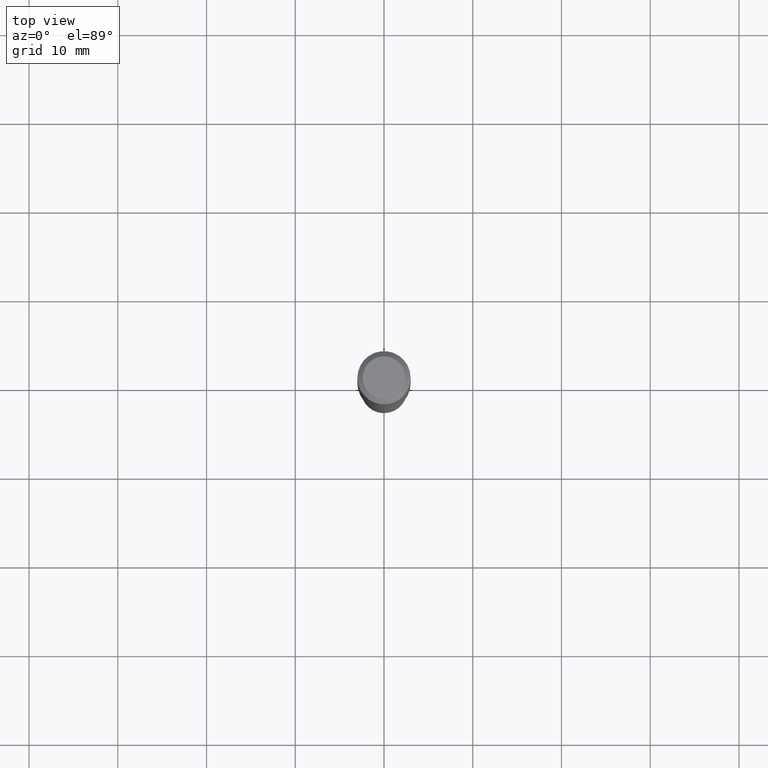
[diagram: clean part render]
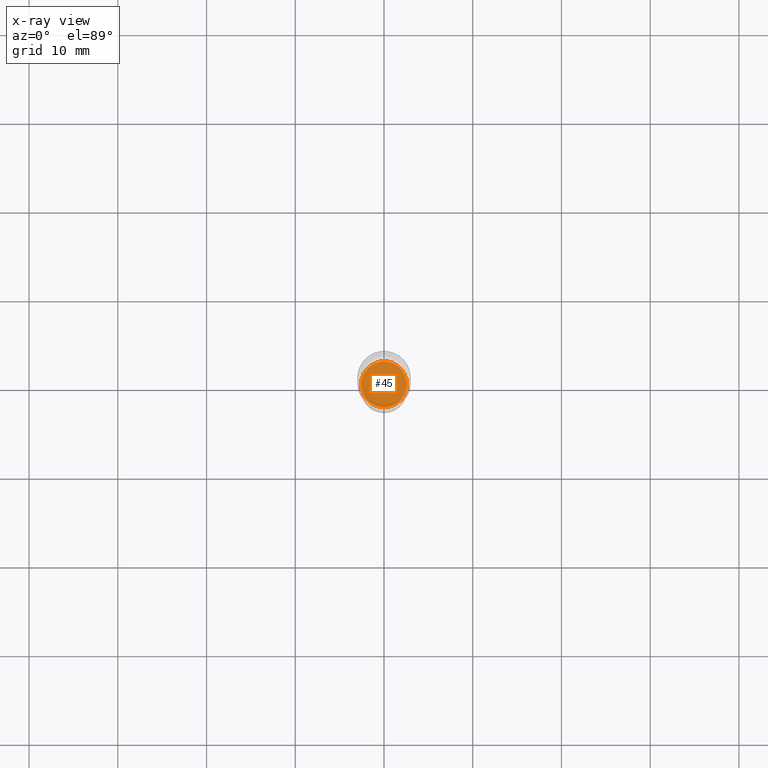
[diagram: x-ray — body ghosted, one internal face saturated and labeled with its STEP entity id]
A machine part, top view, then the same camera in x-ray: the body is ghosted and one INTERNAL B-rep face — a face not visible from any outside direction — is saturated and labeled: STEP entity #45.
In plain terms, the highlighted planar face has unit normal (-0, 0, 1).
Its self-contained STEP definition (entity closure, byte-faithful):
#14 = CIRCLE ( 'NONE', #187, 0.1018499999999999961 ) ;
#16 = PLANE ( 'NONE',  #442 ) ;
#45 = ADVANCED_FACE ( 'NONE', ( #351 ), #16, .F. ) ;
#80 = VERTEX_POINT ( 'NONE', #342 ) ;
#127 = CARTESIAN_POINT ( 'NONE',  ( 4.159008798679061688E-29, -5.937962312970537319E-15, -1.700699999999999878 ) ) ;
#133 = CARTESIAN_POINT ( 'NONE',  ( 4.159008798679061688E-29, -5.937962312970537319E-15, -1.700699999999999878 ) ) ;
#172 = DIRECTION ( 'NONE',  ( 1.000000000000000000, -6.982962677686265922E-15, 4.876176775795935793E-29 ) ) ;
#187 = AXIS2_PLACEMENT_3D ( 'NONE', #485, #189, #227 ) ;
#189 = DIRECTION ( 'NONE',  ( -2.445468806185136597E-29, 3.491481338843145583E-15, 1.000000000000000000 ) ) ;
#200 = DIRECTION ( 'NONE',  ( 1.000000000000000000, -6.982962677686265922E-15, 0.000000000000000000 ) ) ;
#224 = ORIENTED_EDGE ( 'NONE', *, *, #468, .F. ) ;
#227 = DIRECTION ( 'NONE',  ( 1.000000000000000000, -6.982962677686265922E-15, 0.000000000000000000 ) ) ;
#274 = DIRECTION ( 'NONE',  ( -2.445468806185136597E-29, 3.491481338843145583E-15, 1.000000000000000000 ) ) ;
#298 = CARTESIAN_POINT ( 'NONE',  ( 0.1018499999999999961, -6.649177061692883906E-15, -1.700699999999999878 ) ) ;
#332 = VERTEX_POINT ( 'NONE', #298 ) ;
#335 = EDGE_CURVE ( 'NONE', #80, #332, #14, .T. ) ;
#342 = CARTESIAN_POINT ( 'NONE',  ( -0.1018499999999999961, -5.211625309424764107E-15, -1.700699999999999878 ) ) ;
#351 = FACE_OUTER_BOUND ( 'NONE', #446, .T. ) ;
#370 = AXIS2_PLACEMENT_3D ( 'NONE', #133, #274, #200 ) ;
#386 = DIRECTION ( 'NONE',  ( -2.438088387897960049E-29, 3.491481338843145188E-15, 1.000000000000000000 ) ) ;
#390 = ORIENTED_EDGE ( 'NONE', *, *, #335, .F. ) ;
#442 = AXIS2_PLACEMENT_3D ( 'NONE', #127, #386, #172 ) ;
#446 = EDGE_LOOP ( 'NONE', ( #224, #390 ) ) ;
#468 = EDGE_CURVE ( 'NONE', #332, #80, #486, .T. ) ;
#485 = CARTESIAN_POINT ( 'NONE',  ( 4.159008798679061688E-29, -5.937962312970537319E-15, -1.700699999999999878 ) ) ;
#486 = CIRCLE ( 'NONE', #370, 0.1018499999999999961 ) ;